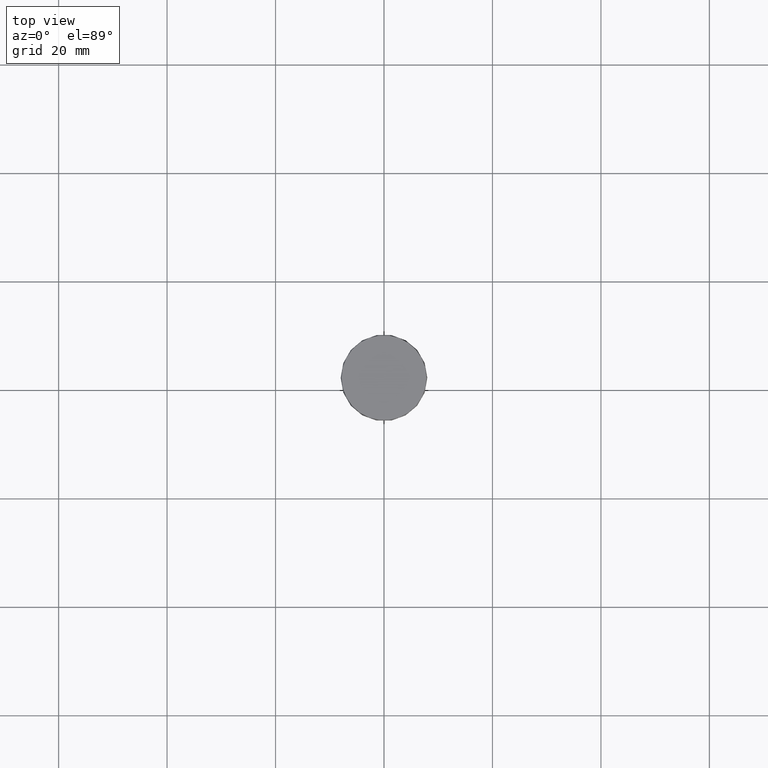
[diagram: clean part render]
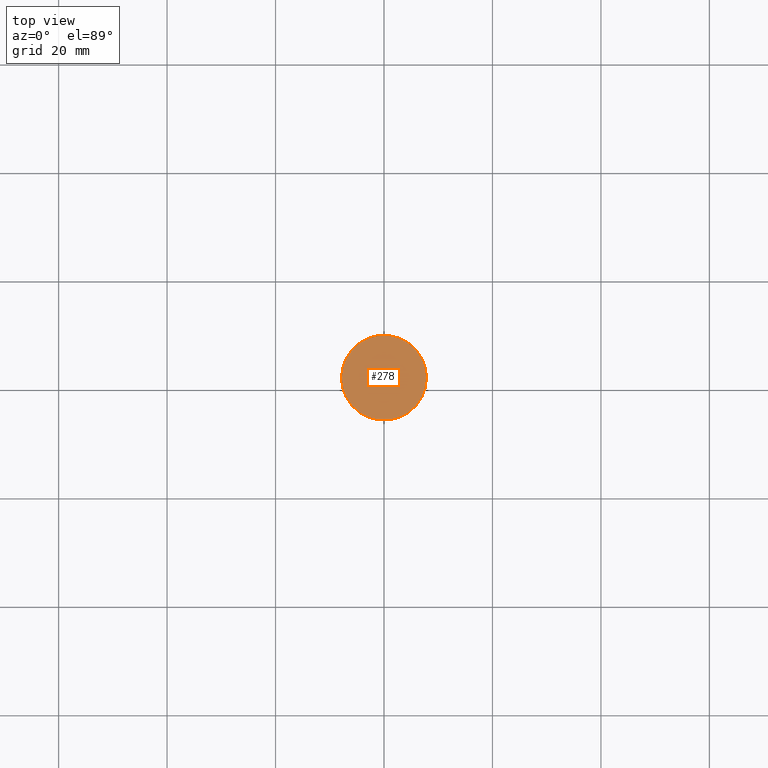
[diagram: same view with one face highlighted and labeled with its STEP entity id]
A machine part, top view. The second image highlights one B-rep face of the part: STEP entity #278.
In plain terms, the highlighted planar face has unit normal (0, 0, 1).
Its self-contained STEP definition (entity closure, byte-faithful):
#16 = ORIENTED_EDGE ( 'NONE', *, *, #188, .F. ) ;
#24 = DIRECTION ( 'NONE',  ( -1.000000000000000000, 0.0000000000000000000, 0.0000000000000000000 ) ) ;
#29 = CARTESIAN_POINT ( 'NONE',  ( -7.828427118366898100, 0.0000000000000000000, -3.280275356898344000E-014 ) ) ;
#51 = AXIS2_PLACEMENT_3D ( 'NONE', #267, #450, #375 ) ;
#64 = EDGE_CURVE ( 'NONE', #420, #216, #98, .T. ) ;
#85 = CARTESIAN_POINT ( 'NONE',  ( 7.828427118366898100, 9.587058212866361900E-016, -3.280275356898344000E-014 ) ) ;
#98 = CIRCLE ( 'NONE', #213, 7.828427118366898100 ) ;
#118 = DIRECTION ( 'NONE',  ( 0.0000000000000000000, -0.0000000000000000000, 1.000000000000000000 ) ) ;
#122 = AXIS2_PLACEMENT_3D ( 'NONE', #234, #118, #275 ) ;
#188 = EDGE_CURVE ( 'NONE', #216, #420, #302, .T. ) ;
#206 = ORIENTED_EDGE ( 'NONE', *, *, #64, .F. ) ;
#213 = AXIS2_PLACEMENT_3D ( 'NONE', #238, #456, #24 ) ;
#216 = VERTEX_POINT ( 'NONE', #85 ) ;
#234 = CARTESIAN_POINT ( 'NONE',  ( 7.828427118366898100, 0.0000000000000000000, -3.280275367486255800E-014 ) ) ;
#238 = CARTESIAN_POINT ( 'NONE',  ( 0.0000000000000000000, 0.0000000000000000000, -3.280275356898344000E-014 ) ) ;
#267 = CARTESIAN_POINT ( 'NONE',  ( 0.0000000000000000000, 0.0000000000000000000, -3.280275356898344000E-014 ) ) ;
#275 = DIRECTION ( 'NONE',  ( 1.000000000000000000, 0.0000000000000000000, 0.0000000000000000000 ) ) ;
#278 = ADVANCED_FACE ( 'NONE', ( #305 ), #424, .T. ) ;
#302 = CIRCLE ( 'NONE', #51, 7.828427118366898100 ) ;
#305 = FACE_OUTER_BOUND ( 'NONE', #394, .T. ) ;
#375 = DIRECTION ( 'NONE',  ( -1.000000000000000000, 0.0000000000000000000, 0.0000000000000000000 ) ) ;
#394 = EDGE_LOOP ( 'NONE', ( #206, #16 ) ) ;
#420 = VERTEX_POINT ( 'NONE', #29 ) ;
#424 = PLANE ( 'NONE',  #122 ) ;
#450 = DIRECTION ( 'NONE',  ( 0.0000000000000000000, 0.0000000000000000000, -1.000000000000000000 ) ) ;
#456 = DIRECTION ( 'NONE',  ( 0.0000000000000000000, 0.0000000000000000000, -1.000000000000000000 ) ) ;